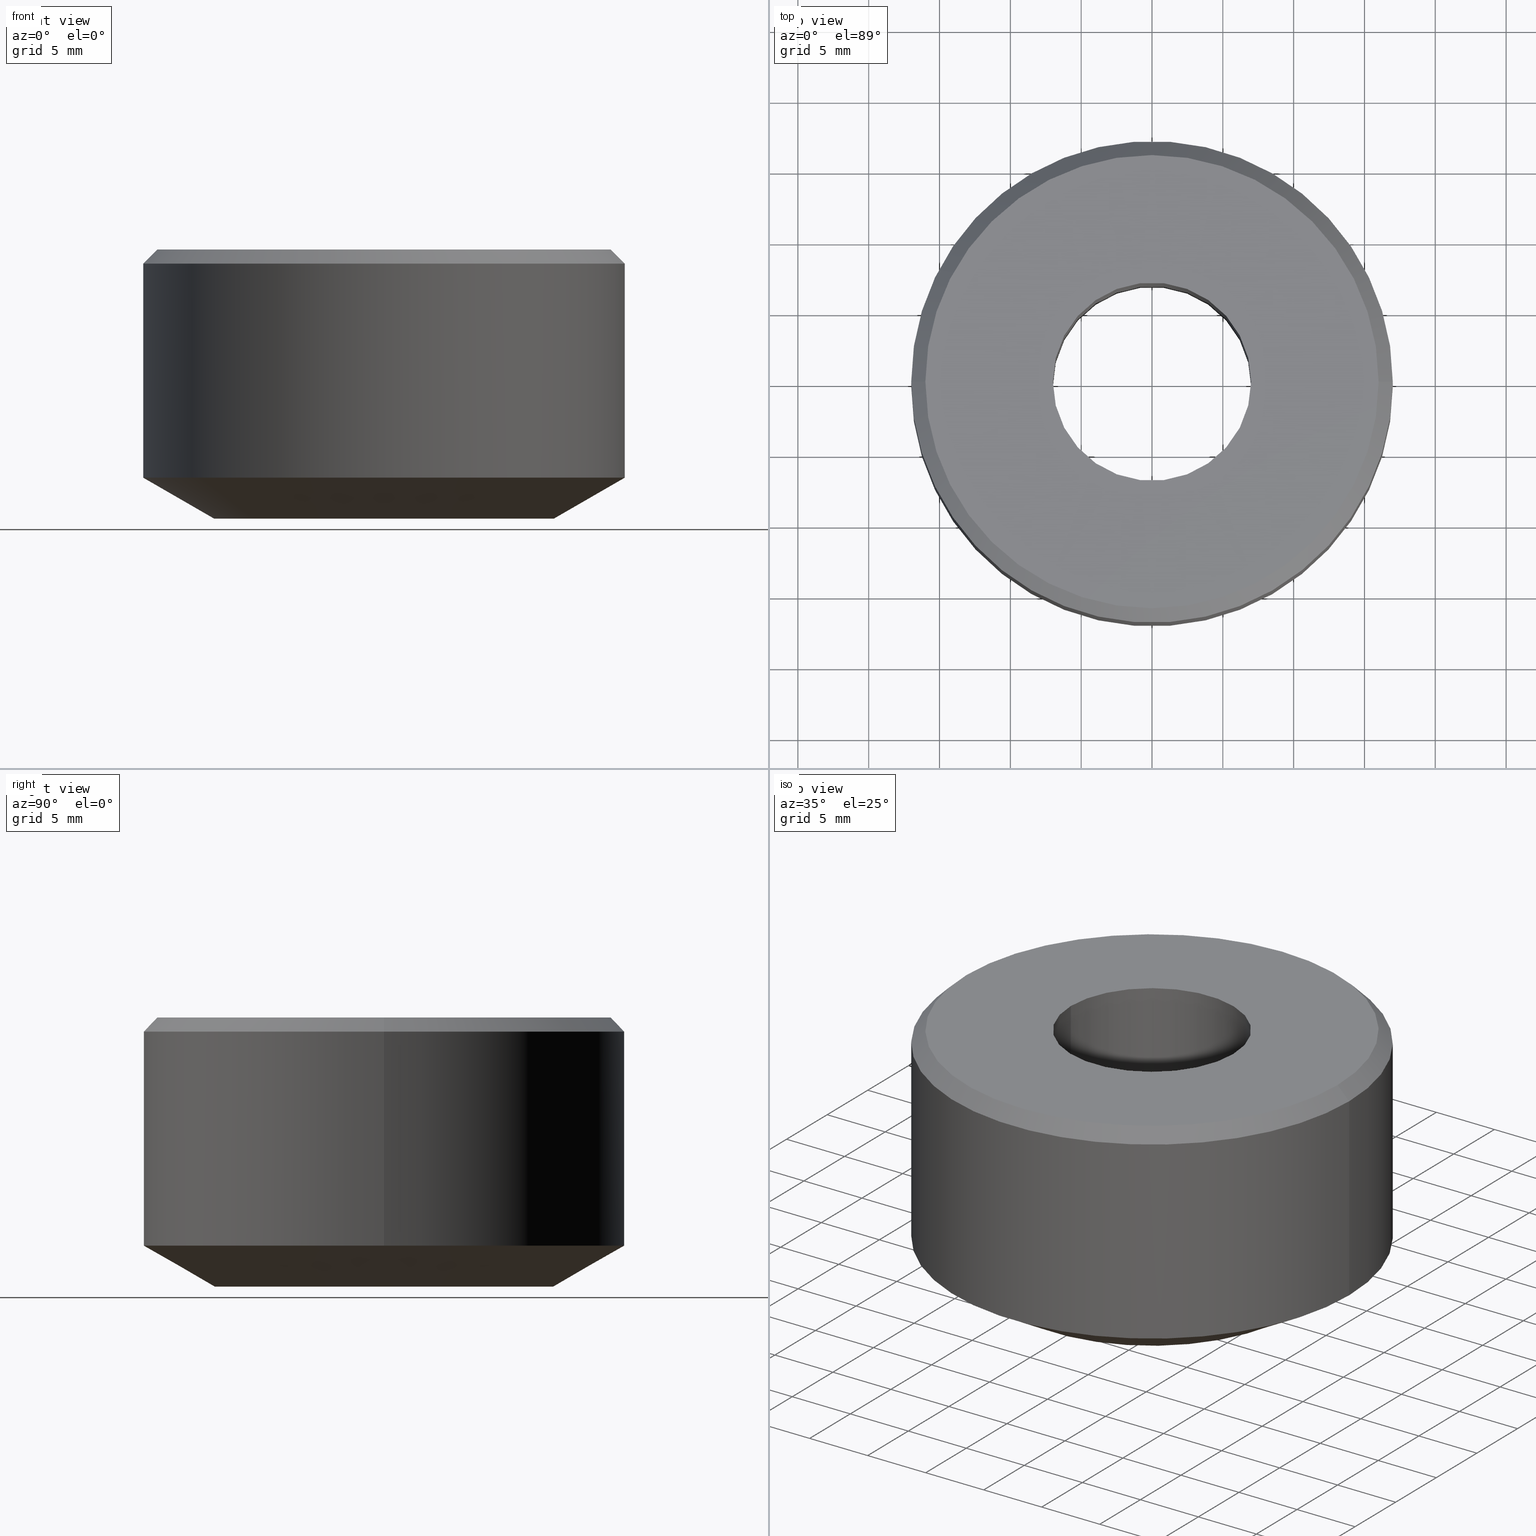
[diagram: canonical four-view strip — front | top / right | iso, engineering-drawing reading convention]
A machine part, canonical four-view strip (front | top / right | iso — engineering-drawing reading convention). The complete STEP part file that produces these views, byte-faithful:
ISO-10303-21;
HEADER;
FILE_DESCRIPTION (( 'STEP AP203' ),
    '1' );
FILE_NAME ('UM ER 20 HEX.STEP',
    '2019-04-22T07:04:10',
    ( '' ),
    ( '' ),
    'SwSTEP 2.0',
    'SolidWorks 2014',
    '' );
FILE_SCHEMA (( 'CONFIG_CONTROL_DESIGN' ));
ENDSEC;

DATA;
#1 = LINE ( 'NONE', #261, #256 ) ;
#2 = FACE_OUTER_BOUND ( 'NONE', #251, .T. ) ;
#3 = FACE_OUTER_BOUND ( 'NONE', #77, .T. ) ;
#4 = CIRCLE ( 'NONE', #315, 6.999999999999997300 ) ;
#5 = DIRECTION ( 'NONE',  ( 0.0000000000000000000, 0.0000000000000000000, 1.000000000000000000 ) ) ;
#6 = COORDINATED_UNIVERSAL_TIME_OFFSET ( 5, 30, .AHEAD. ) ;
#7 = DIRECTION ( 'NONE',  ( -0.0000000000000000000, -0.0000000000000000000, 1.000000000000000000 ) ) ;
#8 = CIRCLE ( 'NONE', #221, 17.00000000000007100 ) ;
#9 = ORIENTED_EDGE ( 'NONE', *, *, #23, .T. ) ;
#10 = ORIENTED_EDGE ( 'NONE', *, *, #301, .T. ) ;
#11 = CARTESIAN_POINT ( 'NONE',  ( 6.999999999999999100, 0.0000000000000000000, 97.24261534636816900 ) ) ;
#12 = LOCAL_TIME ( 12, 34, 10.00000000000000000, #83 ) ;
#13 = DIRECTION ( 'NONE',  ( 1.000000000000000000, 0.0000000000000000000, 0.0000000000000000000 ) ) ;
#14 = EDGE_CURVE ( 'NONE', #25, #331, #234, .T. ) ;
#15 = PRODUCT_DEFINITION ( 'UNKNOWN', '', #276, #188 ) ;
#16 = CONICAL_SURFACE ( 'NONE', #320, 12.00000000000017800, 1.047197551196597600 ) ;
#17 = DIRECTION ( 'NONE',  ( -0.0000000000000000000, -0.0000000000000000000, 1.000000000000000000 ) ) ;
#18 = CALENDAR_DATE ( 2019, 22, 4 ) ;
#19 = VECTOR ( 'NONE', #58, 1000.000000000000000 ) ;
#20 = ORIENTED_EDGE ( 'NONE', *, *, #80, .F. ) ;
#21 = PRODUCT ( 'UM ER 20 HEX', 'UM ER 20 HEX', '', ( #291 ) ) ;
#22 = DIRECTION ( 'NONE',  ( 0.0000000000000000000, 0.0000000000000000000, -1.000000000000000000 ) ) ;
#23 = EDGE_CURVE ( 'NONE', #160, #328, #96, .T. ) ;
#24 = CIRCLE ( 'NONE', #250, 17.00000000000007100 ) ;
#25 = VERTEX_POINT ( 'NONE', #45 ) ;
#26 = ADVANCED_FACE ( 'NONE', ( #106 ), #176, .F. ) ;
#27 = ORIENTED_EDGE ( 'NONE', *, *, #87, .F. ) ;
#28 = CARTESIAN_POINT ( 'NONE',  ( -12.00000000000017800, 1.775737858763677400E-015, 0.0000000000000000000 ) ) ;
#29 =( NAMED_UNIT ( * ) PLANE_ANGLE_UNIT ( ) SI_UNIT ( $, .RADIAN. ) );
#30 = VERTEX_POINT ( 'NONE', #231 ) ;
#31 = PERSON_AND_ORGANIZATION ( #208, #105 ) ;
#32 = DIRECTION ( 'NONE',  ( -0.0000000000000000000, -0.0000000000000000000, 1.000000000000000000 ) ) ;
#33 = PERSON_AND_ORGANIZATION_ROLE ( 'design_owner' ) ;
#34 = AXIS2_PLACEMENT_3D ( 'NONE', #125, #346, #62 ) ;
#35 = ORIENTED_EDGE ( 'NONE', *, *, #248, .F. ) ;
#36 = DIRECTION ( 'NONE',  ( 0.7071067811865474600, 8.659560562354931600E-017, -0.7071067811865475700 ) ) ;
#37 = EDGE_CURVE ( 'NONE', #30, #266, #252, .T. ) ;
#38 = ADVANCED_FACE ( 'NONE', ( #329 ), #325, .F. ) ;
#39 = CLOSED_SHELL ( 'NONE', ( #336, #308, #285, #38, #26, #268, #128, #159, #283, #339 ) ) ;
#40 = ORIENTED_EDGE ( 'NONE', *, *, #101, .F. ) ;
#41 = DIRECTION ( 'NONE',  ( 1.000000000000000000, 0.0000000000000000000, 0.0000000000000000000 ) ) ;
#42 = VERTEX_POINT ( 'NONE', #199 ) ;
#43 = DIRECTION ( 'NONE',  ( 1.000000000000000000, 0.0000000000000000000, 0.0000000000000000000 ) ) ;
#45 = CARTESIAN_POINT ( 'NONE',  ( -7.000000000000000900, 8.572527594031474200E-016, 0.0000000000000000000 ) ) ;
#44 = VECTOR ( 'NONE', #17, 1000.000000000000000 ) ;
#46 = FACE_BOUND ( 'NONE', #107, .T. ) ;
#47 = CC_DESIGN_PERSON_AND_ORGANIZATION_ASSIGNMENT ( #31, #33, ( #21 ) ) ;
#48 = COORDINATED_UNIVERSAL_TIME_OFFSET ( 5, 30, .AHEAD. ) ;
#49 = DIRECTION ( 'NONE',  ( 1.000000000000000000, 0.0000000000000000000, 0.0000000000000000000 ) ) ;
#50 = CIRCLE ( 'NONE', #274, 17.00000000000007100 ) ;
#51 = CARTESIAN_POINT ( 'NONE',  ( 0.0000000000000000000, 0.0000000000000000000, 0.0000000000000000000 ) ) ;
#52 = EDGE_CURVE ( 'NONE', #238, #328, #1, .T. ) ;
#53 = CARTESIAN_POINT ( 'NONE',  ( -17.00000000000007100, 2.081899558550509400E-015, 2.886751345948068700 ) ) ;
#54 = LOCAL_TIME ( 12, 34, 10.00000000000000000, #134 ) ;
#55 = CC_DESIGN_APPROVAL ( #204, ( #15 ) ) ;
#56 = SECURITY_CLASSIFICATION_LEVEL ( 'unclassified' ) ;
#57 = AXIS2_PLACEMENT_3D ( 'NONE', #230, #5, #226 ) ;
#58 = DIRECTION ( 'NONE',  ( -0.0000000000000000000, -0.0000000000000000000, 1.000000000000000000 ) ) ;
#59 = APPLICATION_CONTEXT ( 'configuration controlled 3d designs of mechanical parts and assemblies' ) ;
#60 = CONICAL_SURFACE ( 'NONE', #130, 12.00000000000017800, 1.047197551196597600 ) ;
#61 = ORIENTED_EDGE ( 'NONE', *, *, #164, .T. ) ;
#62 = DIRECTION ( 'NONE',  ( 1.000000000000000000, 0.0000000000000000000, 0.0000000000000000000 ) ) ;
#63 = APPROVAL_DATE_TIME ( #142, #111 ) ;
#64 = LINE ( 'NONE', #11, #19 ) ;
#65 = ADVANCED_BREP_SHAPE_REPRESENTATION ( 'UM ER 20 HEX', ( #205, #57 ), #143 ) ;
#66 = DATE_TIME_ROLE ( 'creation_date' ) ;
#67 = ORIENTED_EDGE ( 'NONE', *, *, #192, .F. ) ;
#68 = AXIS2_PLACEMENT_3D ( 'NONE', #241, #109, #255 ) ;
#69 = ORIENTED_EDGE ( 'NONE', *, *, #14, .F. ) ;
#70 = APPROVAL_PERSON_ORGANIZATION ( #151, #111, #86 ) ;
#71 = CYLINDRICAL_SURFACE ( 'NONE', #196, 17.00000000000007100 ) ;
#72 = DIRECTION ( 'NONE',  ( 1.000000000000000000, 0.0000000000000000000, 0.0000000000000000000 ) ) ;
#73 = EDGE_CURVE ( 'NONE', #25, #100, #298, .T. ) ;
#74 = APPLICATION_PROTOCOL_DEFINITION ( 'international standard', 'config_control_design', 1994, #59 ) ;
#75 = CIRCLE ( 'NONE', #200, 12.00000000000017800 ) ;
#76 = DIRECTION ( 'NONE',  ( -0.0000000000000000000, -0.0000000000000000000, 1.000000000000000000 ) ) ;
#77 = EDGE_LOOP ( 'NONE', ( #10, #172, #27, #99 ) ) ;
#78 = CARTESIAN_POINT ( 'NONE',  ( -17.00000000000007100, 2.081899558550509000E-015, 97.24261534636816900 ) ) ;
#79 = EDGE_LOOP ( 'NONE', ( #228, #330, #20, #237 ) ) ;
#80 = EDGE_CURVE ( 'NONE', #284, #42, #24, .T. ) ;
#81 = DIRECTION ( 'NONE',  ( -0.0000000000000000000, -0.0000000000000000000, 1.000000000000000000 ) ) ;
#82 = AXIS2_PLACEMENT_3D ( 'NONE', #183, #286, #98 ) ;
#83 = COORDINATED_UNIVERSAL_TIME_OFFSET ( 5, 30, .AHEAD. ) ;
#84 = ORIENTED_EDGE ( 'NONE', *, *, #101, .T. ) ;
#85 = EDGE_LOOP ( 'NONE', ( #262, #180, #165, #140 ) ) ;
#86 = APPROVAL_ROLE ( '' ) ;
#87 = EDGE_CURVE ( 'NONE', #328, #160, #50, .T. ) ;
#88 = ORIENTED_EDGE ( 'NONE', *, *, #301, .F. ) ;
#89 = CARTESIAN_POINT ( 'NONE',  ( 0.0000000000000000000, 0.0000000000000000000, 2.886751345948068700 ) ) ;
#90 = AXIS2_PLACEMENT_3D ( 'NONE', #341, #225, #213 ) ;
#91 = DIRECTION ( 'NONE',  ( -0.0000000000000000000, -0.0000000000000000000, 1.000000000000000000 ) ) ;
#92 = DIRECTION ( 'NONE',  ( -0.0000000000000000000, -0.0000000000000000000, 1.000000000000000000 ) ) ;
#93 = DIRECTION ( 'NONE',  ( -1.000000000000000000, 0.0000000000000000000, -0.0000000000000000000 ) ) ;
#94 = LOCAL_TIME ( 12, 34, 10.00000000000000000, #163 ) ;
#95 = DIRECTION ( 'NONE',  ( 1.000000000000000000, 0.0000000000000000000, 0.0000000000000000000 ) ) ;
#96 = CIRCLE ( 'NONE', #117, 17.00000000000007100 ) ;
#97 = CC_DESIGN_PERSON_AND_ORGANIZATION_ASSIGNMENT ( #348, #148, ( #276 ) ) ;
#98 = DIRECTION ( 'NONE',  ( 1.000000000000000000, 0.0000000000000000000, 0.0000000000000000000 ) ) ;
#99 = ORIENTED_EDGE ( 'NONE', *, *, #52, .F. ) ;
#100 = VERTEX_POINT ( 'NONE', #343 ) ;
#101 = EDGE_CURVE ( 'NONE', #331, #25, #186, .T. ) ;
#102 = DIRECTION ( 'NONE',  ( -0.0000000000000000000, -0.0000000000000000000, 1.000000000000000000 ) ) ;
#103 = ORIENTED_EDGE ( 'NONE', *, *, #177, .F. ) ;
#104 = CARTESIAN_POINT ( 'NONE',  ( 12.00000000000017800, 0.0000000000000000000, 0.0000000000000000000 ) ) ;
#105 = ORGANIZATION ( 'UNSPECIFIED', 'UNSPECIFIED', '' ) ;
#106 = FACE_OUTER_BOUND ( 'NONE', #233, .T. ) ;
#107 = EDGE_LOOP ( 'NONE', ( #84, #254 ) ) ;
#108 = DIRECTION ( 'NONE',  ( 0.8660254037844386000, 0.0000000000000000000, 0.5000000000000001100 ) ) ;
#109 = DIRECTION ( 'NONE',  ( -0.0000000000000000000, -0.0000000000000000000, 1.000000000000000000 ) ) ;
#110 = CARTESIAN_POINT ( 'NONE',  ( 6.999999999999997300, 0.0000000000000000000, 19.00000000000012800 ) ) ;
#111 = APPROVAL ( #258, 'UNSPECIFIED' ) ;
#112 = VERTEX_POINT ( 'NONE', #28 ) ;
#113 = CARTESIAN_POINT ( 'NONE',  ( 0.0000000000000000000, 0.0000000000000000000, 97.24261534636816900 ) ) ;
#114 = CC_DESIGN_SECURITY_CLASSIFICATION ( #311, ( #276 ) ) ;
#115 = ORIENTED_EDGE ( 'NONE', *, *, #157, .F. ) ;
#116 = CARTESIAN_POINT ( 'NONE',  ( 0.0000000000000000000, 0.0000000000000000000, 2.886751345948068700 ) ) ;
#117 = AXIS2_PLACEMENT_3D ( 'NONE', #116, #216, #131 ) ;
#118 = APPROVAL_DATE_TIME ( #181, #218 ) ;
#119 = CARTESIAN_POINT ( 'NONE',  ( -12.00000000000017800, 1.469576158976845600E-015, 0.0000000000000000000 ) ) ;
#120 = DIRECTION ( 'NONE',  ( 1.000000000000000000, 0.0000000000000000000, 0.0000000000000000000 ) ) ;
#121 = VECTOR ( 'NONE', #138, 1000.000000000000000 ) ;
#122 = FACE_OUTER_BOUND ( 'NONE', #79, .T. ) ;
#123 =( NAMED_UNIT ( * ) SI_UNIT ( $, .STERADIAN. ) SOLID_ANGLE_UNIT ( ) );
#124 = CONICAL_SURFACE ( 'NONE', #297, 17.00000000000007100, 0.7853981633974482800 ) ;
#125 = CARTESIAN_POINT ( 'NONE',  ( 0.0000000000000000000, 0.0000000000000000000, 0.0000000000000000000 ) ) ;
#126 = DIRECTION ( 'NONE',  ( -0.7071067811865474600, 0.0000000000000000000, -0.7071067811865475700 ) ) ;
#127 = APPROVAL_PERSON_ORGANIZATION ( #193, #218, #137 ) ;
#128 = ADVANCED_FACE ( 'NONE', ( #2 ), #16, .T. ) ;
#129 = FACE_OUTER_BOUND ( 'NONE', #334, .T. ) ;
#130 = AXIS2_PLACEMENT_3D ( 'NONE', #304, #92, #72 ) ;
#131 = DIRECTION ( 'NONE',  ( 1.000000000000000000, 0.0000000000000000000, 0.0000000000000000000 ) ) ;
#132 = APPROVAL_STATUS ( 'not_yet_approved' ) ;
#133 = AXIS2_PLACEMENT_3D ( 'NONE', #259, #243, #278 ) ;
#134 = COORDINATED_UNIVERSAL_TIME_OFFSET ( 5, 30, .AHEAD. ) ;
#135 = DIRECTION ( 'NONE',  ( -0.0000000000000000000, -0.0000000000000000000, 1.000000000000000000 ) ) ;
#136 = AXIS2_PLACEMENT_3D ( 'NONE', #174, #7, #219 ) ;
#137 = APPROVAL_ROLE ( '' ) ;
#138 = DIRECTION ( 'NONE',  ( -0.8660254037844386000, 1.060575238724906800E-016, 0.5000000000000001100 ) ) ;
#139 = LINE ( 'NONE', #178, #345 ) ;
#140 = ORIENTED_EDGE ( 'NONE', *, *, #177, .T. ) ;
#141 = ORIENTED_EDGE ( 'NONE', *, *, #203, .F. ) ;
#142 = DATE_AND_TIME ( #211, #289 ) ;
#143 =( GEOMETRIC_REPRESENTATION_CONTEXT ( 3 ) GLOBAL_UNCERTAINTY_ASSIGNED_CONTEXT ( ( #313 ) ) GLOBAL_UNIT_ASSIGNED_CONTEXT ( ( #333, #29, #123 ) ) REPRESENTATION_CONTEXT ( 'NONE', 'WORKASPACE' ) );
#144 = DIRECTION ( 'NONE',  ( -0.0000000000000000000, -0.0000000000000000000, 1.000000000000000000 ) ) ;
#145 = CC_DESIGN_APPROVAL ( #111, ( #276 ) ) ;
#146 = DIRECTION ( 'NONE',  ( -0.0000000000000000000, -0.0000000000000000000, 1.000000000000000000 ) ) ;
#147 = CONICAL_SURFACE ( 'NONE', #257, 17.00000000000007100, 0.7853981633974482800 ) ;
#148 = PERSON_AND_ORGANIZATION_ROLE ( 'creator' ) ;
#149 = EDGE_LOOP ( 'NONE', ( #88, #220 ) ) ;
#150 = AXIS2_PLACEMENT_3D ( 'NONE', #287, #32, #168 ) ;
#151 = PERSON_AND_ORGANIZATION ( #208, #105 ) ;
#152 = VERTEX_POINT ( 'NONE', #110 ) ;
#153 = DIRECTION ( 'NONE',  ( -0.0000000000000000000, -0.0000000000000000000, 1.000000000000000000 ) ) ;
#154 = EDGE_LOOP ( 'NONE', ( #115, #317, #294, #167 ) ) ;
#155 = CARTESIAN_POINT ( 'NONE',  ( 17.00000000000007100, 0.0000000000000000000, 18.00000000000023800 ) ) ;
#156 = PERSON_AND_ORGANIZATION ( #208, #105 ) ;
#157 = EDGE_CURVE ( 'NONE', #266, #30, #217, .T. ) ;
#158 = AXIS2_PLACEMENT_3D ( 'NONE', #170, #300, #93 ) ;
#159 = ADVANCED_FACE ( 'NONE', ( #227 ), #71, .T. ) ;
#160 = VERTEX_POINT ( 'NONE', #53 ) ;
#161 = DIRECTION ( 'NONE',  ( -0.0000000000000000000, -0.0000000000000000000, 1.000000000000000000 ) ) ;
#162 = CARTESIAN_POINT ( 'NONE',  ( 0.0000000000000000000, 0.0000000000000000000, 18.00000000000023800 ) ) ;
#163 = COORDINATED_UNIVERSAL_TIME_OFFSET ( 5, 30, .AHEAD. ) ;
#164 = EDGE_CURVE ( 'NONE', #331, #152, #64, .T. ) ;
#165 = ORIENTED_EDGE ( 'NONE', *, *, #314, .T. ) ;
#166 = AXIS2_PLACEMENT_3D ( 'NONE', #247, #179, #95 ) ;
#167 = ORIENTED_EDGE ( 'NONE', *, *, #314, .F. ) ;
#168 = DIRECTION ( 'NONE',  ( 1.000000000000000000, 0.0000000000000000000, 0.0000000000000000000 ) ) ;
#169 = DIRECTION ( 'NONE',  ( -0.0000000000000000000, -0.0000000000000000000, 1.000000000000000000 ) ) ;
#170 = CARTESIAN_POINT ( 'NONE',  ( 0.0000000000000000000, 16.00000000000018100, 19.00000000000012800 ) ) ;
#171 = DIRECTION ( 'NONE',  ( -0.0000000000000000000, -0.0000000000000000000, 1.000000000000000000 ) ) ;
#172 = ORIENTED_EDGE ( 'NONE', *, *, #192, .T. ) ;
#173 = PRODUCT_DEFINITION_SHAPE ( 'NONE', 'NONE',  #15 ) ;
#174 = CARTESIAN_POINT ( 'NONE',  ( 0.0000000000000000000, 0.0000000000000000000, 19.00000000000012800 ) ) ;
#175 = ORIENTED_EDGE ( 'NONE', *, *, #73, .F. ) ;
#176 = CYLINDRICAL_SURFACE ( 'NONE', #68, 6.999999999999999100 ) ;
#177 = EDGE_CURVE ( 'NONE', #42, #284, #8, .T. ) ;
#178 = CARTESIAN_POINT ( 'NONE',  ( -17.00000000000007100, 0.0000000000000000000, 18.00000000000023800 ) ) ;
#179 = DIRECTION ( 'NONE',  ( -0.0000000000000000000, -0.0000000000000000000, 1.000000000000000000 ) ) ;
#180 = ORIENTED_EDGE ( 'NONE', *, *, #37, .F. ) ;
#181 = DATE_AND_TIME ( #260, #332 ) ;
#182 = AXIS2_PLACEMENT_3D ( 'NONE', #319, #169, #307 ) ;
#183 = CARTESIAN_POINT ( 'NONE',  ( 0.0000000000000000000, 12.00000000000017800, 0.0000000000000000000 ) ) ;
#184 = ORIENTED_EDGE ( 'NONE', *, *, #157, .T. ) ;
#185 = CC_DESIGN_PERSON_AND_ORGANIZATION_ASSIGNMENT ( #156, #275, ( #15 ) ) ;
#186 = CIRCLE ( 'NONE', #150, 7.000000000000000000 ) ;
#187 = LINE ( 'NONE', #299, #44 ) ;
#188 = DESIGN_CONTEXT ( 'detailed design', #59, 'design' ) ;
#189 = ORIENTED_EDGE ( 'NONE', *, *, #203, .T. ) ;
#190 = AXIS2_PLACEMENT_3D ( 'NONE', #210, #161, #253 ) ;
#191 = APPROVAL_ROLE ( '' ) ;
#192 = EDGE_CURVE ( 'NONE', #112, #160, #215, .T. ) ;
#193 = PERSON_AND_ORGANIZATION ( #208, #105 ) ;
#194 = ORIENTED_EDGE ( 'NONE', *, *, #73, .T. ) ;
#195 = VECTOR ( 'NONE', #153, 1000.000000000000000 ) ;
#196 = AXIS2_PLACEMENT_3D ( 'NONE', #113, #146, #318 ) ;
#197 = CYLINDRICAL_SURFACE ( 'NONE', #182, 17.00000000000007100 ) ;
#198 = PRODUCT_RELATED_PRODUCT_CATEGORY ( 'detail', '', ( #21 ) ) ;
#199 = CARTESIAN_POINT ( 'NONE',  ( -17.00000000000007100, 2.081899558550509000E-015, 18.00000000000023800 ) ) ;
#200 = AXIS2_PLACEMENT_3D ( 'NONE', #321, #91, #49 ) ;
#201 = CARTESIAN_POINT ( 'NONE',  ( 0.0000000000000000000, 0.0000000000000000000, 18.00000000000023800 ) ) ;
#202 = PERSON_AND_ORGANIZATION ( #208, #105 ) ;
#203 = EDGE_CURVE ( 'NONE', #100, #152, #4, .T. ) ;
#204 = APPROVAL ( #132, 'UNSPECIFIED' ) ;
#205 = MANIFOLD_SOLID_BREP ( 'Revolve2', #39 ) ;
#206 = CIRCLE ( 'NONE', #166, 12.00000000000017800 ) ;
#207 = DIRECTION ( 'NONE',  ( 0.0000000000000000000, 0.0000000000000000000, -1.000000000000000000 ) ) ;
#208 = PERSON ( 'UNSPECIFIED', 'UNSPECIFIED', 'UNSPECIFIED', ('UNSPECIFIED'), ('UNSPECIFIED'), ('UNSPECIFIED') ) ;
#209 = EDGE_LOOP ( 'NONE', ( #249, #141 ) ) ;
#210 = CARTESIAN_POINT ( 'NONE',  ( 0.0000000000000000000, 0.0000000000000000000, 19.00000000000012800 ) ) ;
#211 = CALENDAR_DATE ( 2019, 22, 4 ) ;
#212 = PLANE ( 'NONE',  #82 ) ;
#213 = DIRECTION ( 'NONE',  ( 1.000000000000000000, 0.0000000000000000000, 0.0000000000000000000 ) ) ;
#214 = EDGE_CURVE ( 'NONE', #112, #238, #75, .T. ) ;
#215 = LINE ( 'NONE', #119, #121 ) ;
#216 = DIRECTION ( 'NONE',  ( -0.0000000000000000000, -0.0000000000000000000, 1.000000000000000000 ) ) ;
#217 = CIRCLE ( 'NONE', #90, 16.00000000000018100 ) ;
#218 = APPROVAL ( #327, 'UNSPECIFIED' ) ;
#219 = DIRECTION ( 'NONE',  ( 1.000000000000000000, 0.0000000000000000000, 0.0000000000000000000 ) ) ;
#220 = ORIENTED_EDGE ( 'NONE', *, *, #214, .F. ) ;
#221 = AXIS2_PLACEMENT_3D ( 'NONE', #201, #102, #120 ) ;
#222 = DATE_AND_TIME ( #296, #12 ) ;
#223 = ORIENTED_EDGE ( 'NONE', *, *, #281, .T. ) ;
#224 = DIRECTION ( 'NONE',  ( 1.000000000000000000, 0.0000000000000000000, 0.0000000000000000000 ) ) ;
#225 = DIRECTION ( 'NONE',  ( -0.0000000000000000000, -0.0000000000000000000, 1.000000000000000000 ) ) ;
#226 = DIRECTION ( 'NONE',  ( 1.000000000000000000, 0.0000000000000000000, 0.0000000000000000000 ) ) ;
#227 = FACE_OUTER_BOUND ( 'NONE', #229, .T. ) ;
#228 = ORIENTED_EDGE ( 'NONE', *, *, #87, .T. ) ;
#229 = EDGE_LOOP ( 'NONE', ( #35, #9, #280, #103 ) ) ;
#230 = CARTESIAN_POINT ( 'NONE',  ( 0.0000000000000000000, 0.0000000000000000000, 0.0000000000000000000 ) ) ;
#231 = CARTESIAN_POINT ( 'NONE',  ( -16.00000000000018100, 0.0000000000000000000, 19.00000000000012800 ) ) ;
#232 = APPROVAL_DATE_TIME ( #309, #204 ) ;
#233 = EDGE_LOOP ( 'NONE', ( #175, #40, #61, #223 ) ) ;
#234 = CIRCLE ( 'NONE', #34, 7.000000000000000000 ) ;
#235 = ORIENTED_EDGE ( 'NONE', *, *, #52, .T. ) ;
#236 = LINE ( 'NONE', #78, #344 ) ;
#237 = ORIENTED_EDGE ( 'NONE', *, *, #240, .F. ) ;
#238 = VERTEX_POINT ( 'NONE', #104 ) ;
#239 = ORIENTED_EDGE ( 'NONE', *, *, #23, .F. ) ;
#240 = EDGE_CURVE ( 'NONE', #328, #284, #187, .T. ) ;
#241 = CARTESIAN_POINT ( 'NONE',  ( 0.0000000000000000000, 0.0000000000000000000, 97.24261534636816900 ) ) ;
#242 = APPROVAL_PERSON_ORGANIZATION ( #316, #204, #191 ) ;
#243 = DIRECTION ( 'NONE',  ( -0.0000000000000000000, -0.0000000000000000000, 1.000000000000000000 ) ) ;
#244 = CC_DESIGN_DATE_AND_TIME_ASSIGNMENT ( #271, #322, ( #311 ) ) ;
#245 = DIRECTION ( 'NONE',  ( -1.000000000000000000, 0.0000000000000000000, 0.0000000000000000000 ) ) ;
#246 = PERSON_AND_ORGANIZATION_ROLE ( 'classification_officer' ) ;
#247 = CARTESIAN_POINT ( 'NONE',  ( 0.0000000000000000000, 0.0000000000000000000, 0.0000000000000000000 ) ) ;
#248 = EDGE_CURVE ( 'NONE', #160, #42, #236, .T. ) ;
#249 = ORIENTED_EDGE ( 'NONE', *, *, #281, .F. ) ;
#250 = AXIS2_PLACEMENT_3D ( 'NONE', #162, #135, #43 ) ;
#251 = EDGE_LOOP ( 'NONE', ( #67, #295, #235, #239 ) ) ;
#252 = CIRCLE ( 'NONE', #190, 16.00000000000018100 ) ;
#253 = DIRECTION ( 'NONE',  ( 1.000000000000000000, 0.0000000000000000000, 0.0000000000000000000 ) ) ;
#254 = ORIENTED_EDGE ( 'NONE', *, *, #14, .T. ) ;
#255 = DIRECTION ( 'NONE',  ( 1.000000000000000000, 0.0000000000000000000, 0.0000000000000000000 ) ) ;
#256 = VECTOR ( 'NONE', #108, 1000.000000000000000 ) ;
#257 = AXIS2_PLACEMENT_3D ( 'NONE', #305, #22, #273 ) ;
#258 = APPROVAL_STATUS ( 'not_yet_approved' ) ;
#259 = CARTESIAN_POINT ( 'NONE',  ( 0.0000000000000000000, 0.0000000000000000000, 97.24261534636816900 ) ) ;
#260 = CALENDAR_DATE ( 2019, 22, 4 ) ;
#261 = CARTESIAN_POINT ( 'NONE',  ( 12.00000000000017800, 0.0000000000000000000, 0.0000000000000000000 ) ) ;
#262 = ORIENTED_EDGE ( 'NONE', *, *, #272, .F. ) ;
#263 = CARTESIAN_POINT ( 'NONE',  ( 17.00000000000007100, 2.081899558550509000E-015, 18.00000000000023800 ) ) ;
#264 = CARTESIAN_POINT ( 'NONE',  ( -6.999999999999999100, 8.572527594031472200E-016, 97.24261534636816900 ) ) ;
#265 = ORIENTED_EDGE ( 'NONE', *, *, #164, .F. ) ;
#266 = VERTEX_POINT ( 'NONE', #324 ) ;
#267 = CARTESIAN_POINT ( 'NONE',  ( 7.000000000000000000, 0.0000000000000000000, 0.0000000000000000000 ) ) ;
#268 = ADVANCED_FACE ( 'NONE', ( #269, #46 ), #212, .F. ) ;
#269 = FACE_OUTER_BOUND ( 'NONE', #149, .T. ) ;
#270 = PERSON_AND_ORGANIZATION_ROLE ( 'design_supplier' ) ;
#271 = DATE_AND_TIME ( #342, #54 ) ;
#272 = EDGE_CURVE ( 'NONE', #266, #284, #292, .T. ) ;
#273 = DIRECTION ( 'NONE',  ( -1.000000000000000000, 0.0000000000000000000, 0.0000000000000000000 ) ) ;
#274 = AXIS2_PLACEMENT_3D ( 'NONE', #89, #81, #224 ) ;
#275 = PERSON_AND_ORGANIZATION_ROLE ( 'creator' ) ;
#276 = PRODUCT_DEFINITION_FORMATION_WITH_SPECIFIED_SOURCE ( 'ANY', '', #21, .NOT_KNOWN. ) ;
#277 = FACE_OUTER_BOUND ( 'NONE', #154, .T. ) ;
#278 = DIRECTION ( 'NONE',  ( 1.000000000000000000, 0.0000000000000000000, 0.0000000000000000000 ) ) ;
#279 = PERSON_AND_ORGANIZATION ( #208, #105 ) ;
#280 = ORIENTED_EDGE ( 'NONE', *, *, #240, .T. ) ;
#281 = EDGE_CURVE ( 'NONE', #152, #100, #312, .T. ) ;
#282 = FACE_BOUND ( 'NONE', #209, .T. ) ;
#283 = ADVANCED_FACE ( 'NONE', ( #303 ), #147, .T. ) ;
#284 = VERTEX_POINT ( 'NONE', #155 ) ;
#285 = ADVANCED_FACE ( 'NONE', ( #3 ), #60, .T. ) ;
#286 = DIRECTION ( 'NONE',  ( 0.0000000000000000000, -0.0000000000000000000, 1.000000000000000000 ) ) ;
#287 = CARTESIAN_POINT ( 'NONE',  ( 0.0000000000000000000, 0.0000000000000000000, 0.0000000000000000000 ) ) ;
#288 = CARTESIAN_POINT ( 'NONE',  ( 0.0000000000000000000, 0.0000000000000000000, 18.00000000000023800 ) ) ;
#289 = LOCAL_TIME ( 12, 34, 10.00000000000000000, #6 ) ;
#290 = CC_DESIGN_DATE_AND_TIME_ASSIGNMENT ( #222, #66, ( #15 ) ) ;
#291 = MECHANICAL_CONTEXT ( 'NONE', #335, 'mechanical' ) ;
#292 = LINE ( 'NONE', #263, #306 ) ;
#293 = CC_DESIGN_PERSON_AND_ORGANIZATION_ASSIGNMENT ( #202, #246, ( #311 ) ) ;
#294 = ORIENTED_EDGE ( 'NONE', *, *, #80, .T. ) ;
#295 = ORIENTED_EDGE ( 'NONE', *, *, #214, .T. ) ;
#296 = CALENDAR_DATE ( 2019, 22, 4 ) ;
#297 = AXIS2_PLACEMENT_3D ( 'NONE', #288, #207, #245 ) ;
#298 = LINE ( 'NONE', #264, #195 ) ;
#299 = CARTESIAN_POINT ( 'NONE',  ( 17.00000000000007100, 0.0000000000000000000, 97.24261534636816900 ) ) ;
#300 = DIRECTION ( 'NONE',  ( 0.0000000000000000000, 0.0000000000000000000, -1.000000000000000000 ) ) ;
#301 = EDGE_CURVE ( 'NONE', #238, #112, #206, .T. ) ;
#302 = CC_DESIGN_PERSON_AND_ORGANIZATION_ASSIGNMENT ( #279, #270, ( #276 ) ) ;
#303 = FACE_OUTER_BOUND ( 'NONE', #85, .T. ) ;
#304 = CARTESIAN_POINT ( 'NONE',  ( 0.0000000000000000000, 0.0000000000000000000, 0.0000000000000000000 ) ) ;
#305 = CARTESIAN_POINT ( 'NONE',  ( 0.0000000000000000000, 0.0000000000000000000, 18.00000000000023800 ) ) ;
#306 = VECTOR ( 'NONE', #36, 1000.000000000000000 ) ;
#307 = DIRECTION ( 'NONE',  ( 1.000000000000000000, 0.0000000000000000000, 0.0000000000000000000 ) ) ;
#308 = ADVANCED_FACE ( 'NONE', ( #122 ), #197, .T. ) ;
#309 = DATE_AND_TIME ( #18, #94 ) ;
#310 = EDGE_LOOP ( 'NONE', ( #69, #194, #189, #265 ) ) ;
#311 = SECURITY_CLASSIFICATION ( '', '', #56 ) ;
#312 = CIRCLE ( 'NONE', #136, 6.999999999999997300 ) ;
#313 = UNCERTAINTY_MEASURE_WITH_UNIT (LENGTH_MEASURE( 1.000000000000000100E-005 ), #333, 'distance_accuracy_value', 'NONE');
#314 = EDGE_CURVE ( 'NONE', #30, #42, #139, .T. ) ;
#315 = AXIS2_PLACEMENT_3D ( 'NONE', #326, #171, #13 ) ;
#316 = PERSON_AND_ORGANIZATION ( #208, #105 ) ;
#317 = ORIENTED_EDGE ( 'NONE', *, *, #272, .T. ) ;
#318 = DIRECTION ( 'NONE',  ( 1.000000000000000000, 0.0000000000000000000, 0.0000000000000000000 ) ) ;
#319 = CARTESIAN_POINT ( 'NONE',  ( 0.0000000000000000000, 0.0000000000000000000, 97.24261534636816900 ) ) ;
#320 = AXIS2_PLACEMENT_3D ( 'NONE', #51, #144, #41 ) ;
#321 = CARTESIAN_POINT ( 'NONE',  ( 0.0000000000000000000, 0.0000000000000000000, 0.0000000000000000000 ) ) ;
#322 = DATE_TIME_ROLE ( 'classification_date' ) ;
#323 = CC_DESIGN_APPROVAL ( #218, ( #311 ) ) ;
#324 = CARTESIAN_POINT ( 'NONE',  ( 16.00000000000018100, 2.020667218593148500E-015, 19.00000000000012800 ) ) ;
#325 = CYLINDRICAL_SURFACE ( 'NONE', #133, 6.999999999999999100 ) ;
#326 = CARTESIAN_POINT ( 'NONE',  ( 0.0000000000000000000, 0.0000000000000000000, 19.00000000000012800 ) ) ;
#327 = APPROVAL_STATUS ( 'not_yet_approved' ) ;
#328 = VERTEX_POINT ( 'NONE', #337 ) ;
#329 = FACE_OUTER_BOUND ( 'NONE', #310, .T. ) ;
#330 = ORIENTED_EDGE ( 'NONE', *, *, #248, .T. ) ;
#331 = VERTEX_POINT ( 'NONE', #267 ) ;
#332 = LOCAL_TIME ( 12, 34, 10.00000000000000000, #48 ) ;
#333 =( LENGTH_UNIT ( ) NAMED_UNIT ( * ) SI_UNIT ( .MILLI., .METRE. ) );
#334 = EDGE_LOOP ( 'NONE', ( #347, #184 ) ) ;
#335 = APPLICATION_CONTEXT ( 'configuration controlled 3d designs of mechanical parts and assemblies' ) ;
#336 = ADVANCED_FACE ( 'NONE', ( #277 ), #124, .T. ) ;
#337 = CARTESIAN_POINT ( 'NONE',  ( 17.00000000000007100, 0.0000000000000000000, 2.886751345948068700 ) ) ;
#338 = SHAPE_DEFINITION_REPRESENTATION ( #173, #65 ) ;
#339 = ADVANCED_FACE ( 'NONE', ( #282, #129 ), #340, .F. ) ;
#340 = PLANE ( 'NONE',  #158 ) ;
#341 = CARTESIAN_POINT ( 'NONE',  ( 0.0000000000000000000, 0.0000000000000000000, 19.00000000000012800 ) ) ;
#342 = CALENDAR_DATE ( 2019, 22, 4 ) ;
#343 = CARTESIAN_POINT ( 'NONE',  ( -6.999999999999997300, 8.572527594031471200E-016, 19.00000000000012800 ) ) ;
#344 = VECTOR ( 'NONE', #76, 1000.000000000000000 ) ;
#345 = VECTOR ( 'NONE', #126, 1000.000000000000000 ) ;
#346 = DIRECTION ( 'NONE',  ( -0.0000000000000000000, -0.0000000000000000000, 1.000000000000000000 ) ) ;
#347 = ORIENTED_EDGE ( 'NONE', *, *, #37, .T. ) ;
#348 = PERSON_AND_ORGANIZATION ( #208, #105 ) ;
#349 = APPLICATION_PROTOCOL_DEFINITION ( 'international standard', 'config_control_design', 1994, #335 ) ;
ENDSEC;
END-ISO-10303-21;
